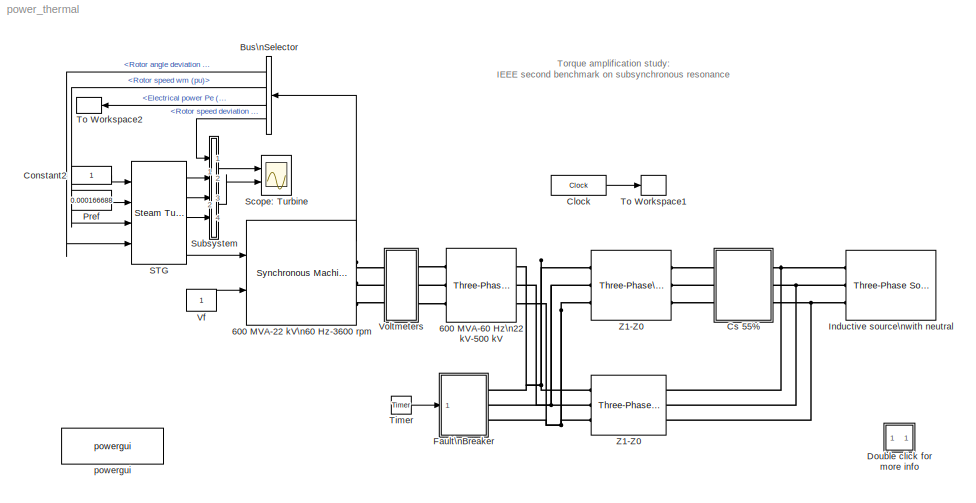
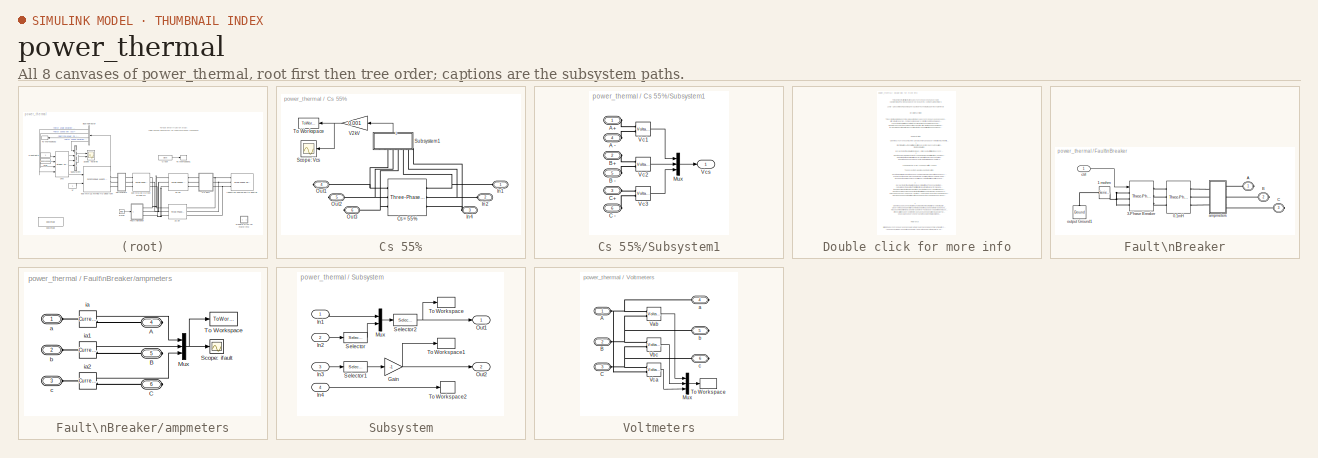
[diagram: thumbnail index - all 8 canvases of the model, root first then tree order]
MODEL power_thermal
KIND model
BLOCK [Reference] 600 MVA-22 kV\n60 Hz-3600 rpm  REF=powerlib/Machines/Synchronous Machine\npu Fundamental
  AttributesFormatString = \\n
  Dampers1 = [ 1.1685E-02  0.18167  1.9718E-02  038371 ]\n
  Dampers2 = [ 0.016  0.132  0.00898  0.411  0.0116  0.0738 ]
  Field = [  0.00096  0.1186 ]
  InitialConditions = [0  0   0 0 0   0 0 0   0]
  LoadFlowParameters = [1 100000 0 0]
  Mechanical = [ 0.87882   0.176*8   1 ]
  NominalParameters = [ 600e6  22e3   60 ]
  Ports = [2, 1, 0, 0, 0, 0, 3]
  PresetModel = No
  RotorType = Round
  Saturation = [0.6404,0.7127,0.8441,0.9214,0.9956,1.082,1.19,1.316,1.457;0.7,0.7698,0.8872,0.9466,0.9969,1.046,1.1,1.151,1.201]
  SetSaturation = off
  ShowDetailedParameters = on
  ShowPortLabels = on
  SourceBlock = powerlib/Machines/Synchronous Machine\npu Fundamental
  SourceType = Synchronous Machine
  Stator = [  0.0045  0.14  1.51  1.45 ]
  Units = 0
BLOCK [Reference] 600 MVA-60 Hz\n22 kV-500 kV  REF=powerlib/Elements/Three-Phase\nTransformer\n(Two Windings)
  AttributesFormatString = \\n
  DataFile = 'hysteresis'
  Hysteresis = off
  InitialFluxes = [ 0.8 , -0.8 , 0.7 ]
  Lm = 500
  Measurements = None
  NominalPower = [ 600e6   60 ]
  Ports = [0, 0, 0, 0, 0, 3, 3]
  Rm = 500
  Saturation = [ 0,0  ;  0.005,1.2  ;  1.0,1.4 ]
  SetInitialFlux = off
  SetSaturation = off
  ShowPortLabels = on
  SourceBlock = powerlib/Elements/Three-Phase\nTransformer\n(Two Windings)
  SourceType = Three-Phase Transformer (Two Windings)
  TransfoNumber = 0
  Winding1 = [ 22e3  1e-6   0  ]
  Winding1Connection = Delta (D1)
  Winding2 = [ 500e3  0.0012   0.12 ]
  Winding2Connection = Yg
BLOCK [BusSelector] Bus\nSelector
  DialogController = Simulink.DDGSource_Bus
  OutputSignals = Mechanical.Rotor angle deviation  d_theta (rad),Mechanical.Rotor speed  wm (pu),Mechanical.Electrical power  Pe (pu),Mechanical.Rotor speed deviation  dw (pu)
  Ports = [1, 4]
BLOCK [Clock] Clock
  Decimation = 100
  DisplayTime = on
BLOCK [Constant] Constant2
BLOCK [SubSystem] Cs 55%
  MaskDisplay = plot(0,0,100,100,[40,10],[50,50],[90,60],[50,50],[40,40],[20,80],[60,60],[20,80])
  MaskIconFrame = on
  MaskIconOpaque = on
  MaskIconRotate = none
  MaskIconUnits = autoscale
  MinAlgLoopOccurrences = off
  Ports = [0, 0, 0, 0, 0, 3, 3]
  RTWSystemCode = Auto
  TreatAsAtomicUnit = off
BLOCK [Reference] Cs 55%/Cs = 55%  REF=powerlib/Elements/Three-Phase\nSeries RLC Branch
  AttributesFormatString = \\n
  Capacitance = 1/(0.55*0.5305*(120*pi)^2)
  Inductance = 0
  LConnTagsString = A|B|C
  LeftPortType = p1
  Measurements = None
  PhysicalDomain = powersysdomain
  Ports = [0, 0, 0, 0, 0, 3, 3]
  RConnTagsString = A|B|C
  Resistance = 0
  RightPortType = p1
  SourceBlock = powerlib/Elements/Three-Phase\nSeries RLC Branch
  SourceType = Three-Phase Series RLC Branch
  SubClassName = unknown
BLOCK [PMIOPort] Cs 55%/In1
  Port = 1
  Side = Left
BLOCK [PMIOPort] Cs 55%/In2
  Port = 2
  Side = Left
BLOCK [PMIOPort] Cs 55%/In4
  Port = 3
  Side = Left
BLOCK [PMIOPort] Cs 55%/Out1
  Port = 4
  Side = Right
BLOCK [PMIOPort] Cs 55%/Out2
  Port = 5
  Side = Right
BLOCK [PMIOPort] Cs 55%/Out3
  Port = 6
  Side = Right
BLOCK [Scope] Cs 55%/Scope: Vcs
  DataFormat = StructureWithTime
  LimitDataPoints = off
  NumInputPorts = 1
  Ports = [1]
  YMax = 500
  YMin = -500
BLOCK [SubSystem] Cs 55%/Subsystem1
  MinAlgLoopOccurrences = off
  Ports = [0, 1, 0, 0, 0, 6]
  RTWSystemCode = Auto
  TreatAsAtomicUnit = off
BLOCK [PMIOPort] Cs 55%/Subsystem1/A -
  Port = 4
  Side = Left
BLOCK [PMIOPort] Cs 55%/Subsystem1/A+
  Port = 1
  Side = Left
BLOCK [PMIOPort] Cs 55%/Subsystem1/B -
  Port = 5
  Side = Left
BLOCK [PMIOPort] Cs 55%/Subsystem1/B+
  Port = 2
  Side = Left
BLOCK [PMIOPort] Cs 55%/Subsystem1/C -
  Port = 6
  Side = Left
BLOCK [PMIOPort] Cs 55%/Subsystem1/C+
  Port = 3
  Side = Left
BLOCK [Mux] Cs 55%/Subsystem1/Mux
  DisplayOption = bar
  Inputs = 3
  Ports = [3, 1]
BLOCK [Reference] Cs 55%/Subsystem1/Vc1  REF=powerlib/Measurements/Voltage Measurement
  AttributesFormatString = \\n
  OutputType = Magnitude
  PSBequivalent = 0
  PhasorSimulation = off
  Ports = [0, 1, 0, 0, 0, 2]
  ShowPortLabels = on
  SourceBlock = powerlib/Measurements/Voltage Measurement
  SourceType = Voltage Measurement
  Tag = PoWeRsYsTeMmEaSuReMeNt
BLOCK [Reference] Cs 55%/Subsystem1/Vc2  REF=powerlib/Measurements/Voltage Measurement
  AttributesFormatString = \\n
  OutputType = Magnitude
  PSBequivalent = 0
  PhasorSimulation = off
  Ports = [0, 1, 0, 0, 0, 2]
  ShowPortLabels = on
  SourceBlock = powerlib/Measurements/Voltage Measurement
  SourceType = Voltage Measurement
  Tag = PoWeRsYsTeMmEaSuReMeNt
BLOCK [Reference] Cs 55%/Subsystem1/Vc3  REF=powerlib/Measurements/Voltage Measurement
  AttributesFormatString = \\n
  OutputType = Magnitude
  PSBequivalent = 0
  PhasorSimulation = off
  Ports = [0, 1, 0, 0, 0, 2]
  ShowPortLabels = on
  SourceBlock = powerlib/Measurements/Voltage Measurement
  SourceType = Voltage Measurement
  Tag = PoWeRsYsTeMmEaSuReMeNt
BLOCK [Outport] Cs 55%/Subsystem1/Vcs
  BusOutputAsStruct = off
  IconDisplay = Port number
BLOCK [ToWorkspace] Cs 55%/To Workspace
  MaxDataPoints = inf
  SaveFormat = Array
  VariableName = vcs
BLOCK [Gain] Cs 55%/V2kV
  Gain = 0.001
BLOCK [SubSystem] Double click for more info
  MaskDisplay = disp('?')
  MaskIconFrame = on
  MaskIconOpaque = on
  MaskIconRotate = none
  MaskIconUnits = autoscale
  MinAlgLoopOccurrences = off
  Ports = []
  RTWSystemCode = Auto
  TreatAsAtomicUnit = off
BLOCK [SubSystem] Fault\nBreaker
  MinAlgLoopOccurrences = off
  Ports = [1, 0, 0, 0, 0, 0, 3]
  RTWSystemCode = Auto
  TreatAsAtomicUnit = off
BLOCK [Reference] Fault\nBreaker/0.1mH  REF=powerlib/Elements/Three-Phase\nSeries RLC Branch
  AttributesFormatString = \\n
  Capacitance = inf
  Inductance = 0.1e-3
  LConnTagsString = A|B|C
  LeftPortType = p1
  Measurements = None
  PhysicalDomain = powersysdomain
  Ports = [0, 0, 0, 0, 0, 3, 3]
  RConnTagsString = A|B|C
  Resistance = 0
  RightPortType = p1
  SourceBlock = powerlib/Elements/Three-Phase\nSeries RLC Branch
  SourceType = Three-Phase Series RLC Branch
  SubClassName = unknown
BLOCK [Reference] Fault\nBreaker/1 mohm  REF=powerlib/Elements/Series RLC Branch
  AttributesFormatString = \\n
  Capacitance = inf
  Inductance = 0
  LConnTagsString = __new0
  LeftPortType = p1
  Measurements = None
  PhysicalDomain = powersysdomain
  Ports = [0, 0, 0, 0, 0, 1, 1]
  RConnTagsString = __new0
  Resistance = 0.001
  RightPortType = p1
  SourceBlock = powerlib/Elements/Series RLC Branch
  SourceType = Series RLC Branch
  SubClassName = unknown
BLOCK [Reference] Fault\nBreaker/3-Phase Breaker  REF=powerlib/Elements/Three-Phase Breaker
  AttributesFormatString = \\n
  BreakerResistance = 0.001
  External = on
  InitialState = open
  Measurements = None
  Ports = [1, 0, 0, 0, 0, 3, 3]
  ShowPortLabels = on
  SnubberCapacitance = inf
  SnubberResistance = 1e6
  SourceBlock = powerlib/Elements/Three-Phase Breaker
  SourceType = Three-Phase Breaker
  SwitchA = on
  SwitchB = on
  SwitchC = on
  SwitchTimes = [4/60  10/60]
BLOCK [PMIOPort] Fault\nBreaker/A
  Port = 1
  Side = Right
BLOCK [PMIOPort] Fault\nBreaker/B
  Port = 2
  Side = Right
BLOCK [PMIOPort] Fault\nBreaker/C
  Port = 3
  Side = Right
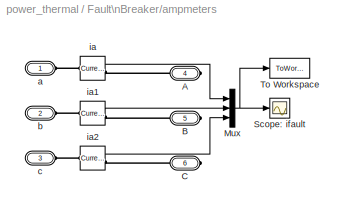
BLOCK [SubSystem] Fault\nBreaker/ampmeters
  MinAlgLoopOccurrences = off
  Ports = [0, 0, 0, 0, 0, 3, 3]
  RTWSystemCode = Auto
  TreatAsAtomicUnit = off
BLOCK [PMIOPort] Fault\nBreaker/ampmeters/A
  Port = 4
  Side = Right
BLOCK [PMIOPort] Fault\nBreaker/ampmeters/B
  Port = 5
  Side = Right
BLOCK [PMIOPort] Fault\nBreaker/ampmeters/C
  Port = 6
  Side = Right
BLOCK [Mux] Fault\nBreaker/ampmeters/Mux
  DisplayOption = bar
  Inputs = 3
  Ports = [3, 1]
BLOCK [Scope] Fault\nBreaker/ampmeters/Scope: ifault
  DataFormat = StructureWithTime
  LimitDataPoints = off
  NumInputPorts = 1
  Ports = [1]
  YMax = 9000
  YMin = -9000
BLOCK [ToWorkspace] Fault\nBreaker/ampmeters/To Workspace
  MaxDataPoints = inf
  SaveFormat = Array
  VariableName = ifault
BLOCK [PMIOPort] Fault\nBreaker/ampmeters/a
  Port = 1
  Side = Left
BLOCK [PMIOPort] Fault\nBreaker/ampmeters/b
  Port = 2
  Side = Left
BLOCK [PMIOPort] Fault\nBreaker/ampmeters/c
  Port = 3
  Side = Left
BLOCK [Reference] Fault\nBreaker/ampmeters/ia  REF=powerlib/Measurements/Current Measurement
  AttributesFormatString = \\n
  OutputType = Magnitude
  PSBequivalent = 0
  PhasorSimulation = off
  Ports = [0, 1, 0, 0, 0, 1, 1]
  ShowPortLabels = on
  SourceBlock = powerlib/Measurements/Current Measurement
  SourceType = Current Measurement
  Tag = PoWeRsYsTeMmEaSuReMeNt
BLOCK [Reference] Fault\nBreaker/ampmeters/ia1  REF=powerlib/Measurements/Current Measurement
  AttributesFormatString = \\n
  OutputType = Magnitude
  PSBequivalent = 0
  PhasorSimulation = off
  Ports = [0, 1, 0, 0, 0, 1, 1]
  ShowPortLabels = on
  SourceBlock = powerlib/Measurements/Current Measurement
  SourceType = Current Measurement
  Tag = PoWeRsYsTeMmEaSuReMeNt
BLOCK [Reference] Fault\nBreaker/ampmeters/ia2  REF=powerlib/Measurements/Current Measurement
  AttributesFormatString = \\n
  OutputType = Magnitude
  PSBequivalent = 0
  PhasorSimulation = off
  Ports = [0, 1, 0, 0, 0, 1, 1]
  ShowPortLabels = on
  SourceBlock = powerlib/Measurements/Current Measurement
  SourceType = Current Measurement
  Tag = PoWeRsYsTeMmEaSuReMeNt
BLOCK [Inport] Fault\nBreaker/ctrl
  IconDisplay = Port number
  LatchInput = off
  Port = 1
BLOCK [Reference] Fault\nBreaker/output Ground1  REF=powerlib/Elements/Ground
  AttributesFormatString = \\n
  LConnTagsString = a
  LeftPortType = p1
  PhysicalDomain = powersysdomain
  Ports = [0, 0, 0, 0, 0, 1]
  RightPortType = p1
  SourceBlock = powerlib/Elements/Ground
  SourceType = Ground
  SubClassName = unknown
BLOCK [Reference] Inductive source\nwith neutral  REF=powerlib/Electrical\nSources/Three-Phase Source
  BaseVoltage = 0
  Frequency = 60
  Inductance = 0.1989
  InternalConnection = Yg
  PhaseAngle = 0
  Ports = [0, 0, 0, 0, 0, 0, 3]
  Resistance = 3.5
  ShortCircuitLevel = 0
  ShowPortLabels = on
  SourceBlock = powerlib/Electrical\nSources/Three-Phase Source
  SourceType = Three-Phase Source
  SpecifyImpedance = off
  Voltage = 500e3
  XRratio = 0
BLOCK [Constant] Pref
  Value = 0.000166688
BLOCK [Reference] STG  REF=powerlib/Machines/Steam Turbine\nand Governor
  DA = [  0.3104  0.05  0  0 ]*8
  HA = [  1.5498   0.24894  0  0 ]
  KA = [  83.47  42.702  0  0 ]
  Ports = [4, 4]
  ShowPortLabels = on
  SourceBlock = powerlib/Machines/Steam Turbine\nand Governor
  SourceType = Steam Turbine and Governor
  gentype = Tandem-compound (multi-mass)
  ini1 = 250.35/555
  ini2 = [0.000166688,-120.04]
  reg1 = [ 1  0.05    0 ]
  reg2 = [ 0.001  0.15 ]
  reg3 = [ -0.1  0.1  0.00016668  0.00016668*1.01 ]
  turb1 = [ 0  10   3.3   0.5   ]
  turb2 = [ 0.5   0.5   0  0 ]
BLOCK [Scope] Scope: Turbine
  DataFormat = StructureWithTime
  LimitDataPoints = off
  NumInputPorts = 2
  Ports = [2]
  TimeRange = 0.5
  YMax = 0.6~130
  YMin = -0.9~-70
  ZoomMode = xonly
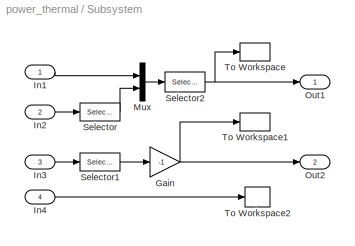
BLOCK [SubSystem] Subsystem
  MinAlgLoopOccurrences = off
  Ports = [4, 2]
  RTWSystemCode = Auto
  TreatAsAtomicUnit = off
BLOCK [Gain] Subsystem/Gain
  Gain = -1
BLOCK [Inport] Subsystem/In1
  IconDisplay = Port number
  LatchInput = off
  Port = 1
BLOCK [Inport] Subsystem/In2
  IconDisplay = Port number
  LatchInput = off
  Port = 2
BLOCK [Inport] Subsystem/In3
  IconDisplay = Port number
  LatchInput = off
  Port = 3
BLOCK [Inport] Subsystem/In4
  IconDisplay = Port number
  LatchInput = off
  Port = 4
BLOCK [Mux] Subsystem/Mux
  DisplayOption = bar
  Inputs = 2
  Ports = [2, 1]
BLOCK [Outport] Subsystem/Out1
  BusOutputAsStruct = off
  IconDisplay = Port number
BLOCK [Outport] Subsystem/Out2
  BusOutputAsStruct = off
  IconDisplay = Port number
  Port = 2
BLOCK [Selector] Subsystem/Selector
  Elements = [3 4]
  InputPortWidth = 4
  Ports = [1, 1]
BLOCK [Selector] Subsystem/Selector1
  Elements = [3 4]
  InputPortWidth = 4
  Ports = [1, 1]
BLOCK [Selector] Subsystem/Selector2
  Elements = [2 3 1]
  InputPortWidth = 3
  Ports = [1, 1]
BLOCK [ToWorkspace] Subsystem/To Workspace
  MaxDataPoints = inf
  SaveFormat = Array
  VariableName = dw
BLOCK [ToWorkspace] Subsystem/To Workspace1
  MaxDataPoints = inf
  SaveFormat = Array
  VariableName = T
BLOCK [ToWorkspace] Subsystem/To Workspace2
  MaxDataPoints = inf
  SaveFormat = Array
  VariableName = g
BLOCK [Reference] Timer  REF=powerlib_extras/Control \nBlocks/Timer
  Ports = [0, 1]
  ShowPortLabels = on
  SourceBlock = powerlib_extras/Control \nBlocks/Timer
  SourceType = Timer
  e = [ 1 0 ]
  t = [ 0.022289  0.022289+0.017 ]
BLOCK [ToWorkspace] To Workspace1
  MaxDataPoints = inf
  SaveFormat = Array
  VariableName = t
BLOCK [ToWorkspace] To Workspace2
  MaxDataPoints = inf
  SaveFormat = Array
  VariableName = Pe
BLOCK [Constant] Vf
BLOCK [SubSystem] Voltmeters
  MinAlgLoopOccurrences = off
  Ports = [0, 0, 0, 0, 0, 3, 3]
  RTWSystemCode = Auto
  TreatAsAtomicUnit = off
BLOCK [PMIOPort] Voltmeters/A
  Port = 1
  Side = Left
BLOCK [PMIOPort] Voltmeters/B
  Port = 2
  Side = Left
BLOCK [PMIOPort] Voltmeters/C
  Port = 3
  Side = Left
BLOCK [Mux] Voltmeters/Mux
  DisplayOption = bar
  Inputs = 3
  Ports = [3, 1]
BLOCK [ToWorkspace] Voltmeters/To Workspace
  MaxDataPoints = inf
  SaveFormat = Array
  VariableName = vt
BLOCK [Reference] Voltmeters/Vab  REF=powerlib/Measurements/Voltage Measurement
  AttributesFormatString = \\n
  OutputType = Magnitude
  PSBequivalent = 0
  PhasorSimulation = off
  Ports = [0, 1, 0, 0, 0, 2]
  ShowPortLabels = on
  SourceBlock = powerlib/Measurements/Voltage Measurement
  SourceType = Voltage Measurement
  Tag = PoWeRsYsTeMmEaSuReMeNt
BLOCK [Reference] Voltmeters/Vbc  REF=powerlib/Measurements/Voltage Measurement
  AttributesFormatString = \\n
  OutputType = Magnitude
  PSBequivalent = 0
  PhasorSimulation = off
  Ports = [0, 1, 0, 0, 0, 2]
  ShowPortLabels = on
  SourceBlock = powerlib/Measurements/Voltage Measurement
  SourceType = Voltage Measurement
  Tag = PoWeRsYsTeMmEaSuReMeNt
BLOCK [Reference] Voltmeters/Vca  REF=powerlib/Measurements/Voltage Measurement
  AttributesFormatString = \\n
  OutputType = Magnitude
  PSBequivalent = 0
  PhasorSimulation = off
  Ports = [0, 1, 0, 0, 0, 2]
  ShowPortLabels = on
  SourceBlock = powerlib/Measurements/Voltage Measurement
  SourceType = Voltage Measurement
  Tag = PoWeRsYsTeMmEaSuReMeNt
BLOCK [PMIOPort] Voltmeters/a
  Port = 4
  Side = Right
BLOCK [PMIOPort] Voltmeters/b
  Port = 5
  Side = Right
BLOCK [PMIOPort] Voltmeters/c
  Port = 6
  Side = Right
BLOCK [Reference] Z1-Z0  REF=powerlib/Elements/Three-Phase\nMutual Inductance\nZ1-Z0
  AttributesFormatString = \\n
  LConnTagsString = a|b|c
  LeftPortType = p1
  PhysicalDomain = powersysdomain
  Ports = [0, 0, 0, 0, 0, 3, 3]
  PositiveSequence = [ 18.5  0.5305 ]
  RConnTagsString = A|B|C
  RightPortType = p1
  SourceBlock = powerlib/Elements/Three-Phase\nMutual Inductance\nZ1-Z0
  SourceType = Three-Phase Mutual Inductance Z1-Z0
  SubClassName = unknown
  ZeroSequence = [ 55.0  1.5915 ]
BLOCK [Reference] Z1-Z0   REF=powerlib/Elements/Three-Phase\nMutual Inductance\nZ1-Z0
  AttributesFormatString = \\n
  LConnTagsString = a|b|c
  LeftPortType = p1
  PhysicalDomain = powersysdomain
  Ports = [0, 0, 0, 0, 0, 3, 3]
  PositiveSequence = [ 16.75  0.4901 ]
  RConnTagsString = A|B|C
  RightPortType = p1
  SourceBlock = powerlib/Elements/Three-Phase\nMutual Inductance\nZ1-Z0
  SourceType = Three-Phase Mutual Inductance Z1-Z0
  SubClassName = unknown
  ZeroSequence = [ 46.5  1.3926 ]
BLOCK [Reference] powergui  REF=powerlib/powergui
  DisplayStyle = off
  Frange = logspace(0,3,50)
  FreqAxis = off
  MaxFrequency = 1000
  Ports = []
  Priority = 2
  RmsSteady = 1
  ShowPortLabels = on
  SourceBlock = powerlib/powergui
  SourceType = PSB option menu block
  StartTime = 0.0
  Ts = 0
  Xlog = off
  Ylog = off
  ZoomFFT = on
  cycles = 2
  display = off
  echomessages = off
  frequency = 60
  frequencyindice = 1
  frequencyindicesteady = 1
  fundamental = 60
  methode = off
  save = off
  variable = ZData
ANNOTATION (root): Torque amplification study:\nIEEE second benchmark on subsynchronous resonance
ANNOTATION Double click for more info: 1
ANNOTATION Double click for more info: 2
ANNOTATION Double click for more info: 3
ANNOTATION Double click for more info: 4
ANNOTATION Double click for more info: Circuit Description
ANNOTATION Double click for more info: Demonstration
ANNOTATION Double click for more info: In order to start the simulation in steady state with the STG connected, this Simulink block must also be initialized according to the values \ncalculated by the load flow. This initialization is automatically performed when you execute the Load Flow, as long as you connect at\nthe Pm and Vf inputs of the machine either Constant blocks or regulation blocks from the machine library (HTG, STG, or Ex...<+457ch>
ANNOTATION Double click for more info: In order to start the simulation in steady-state you must initialize the synchronous machine for the desired load flow.\nOpen the POWERGUI and select \"Load Flow & Machine initialization\" . The machine \"Bus type\" should be already initialized as \"PV generator\",\nindicating that the load flow will be performed with the machine controlling its active power and terminal voltage.\nSpecify the des...<+49ch>
ANNOTATION Double click for more info: Load Flow: U AB (Vrms) = 22000 , P (wattts) =100e3
ANNOTATION Double click for more info: Louis-A. Dessaint and R. Champagne (Ecole de Technologie Superieure, Montreal)
ANNOTATION Double click for more info: Open the Scope connected to the STG model. Run the simulation by selecting Start from the Simulation menu. \nObserve the speed deviations on the top axis of the Scope and the torques transmitted between the shaft's \nmasses on the bottom axis. A peak torque of over 4 pu is observed between masses 1 and 2. The frequency \nof the oscillations oberved in the torques and speed deviations is about 27 H...<+95ch>
ANNOTATION Double click for more info: Open the synchronous machine (SM) block menu and observe that the machine intial conditions (last line) are set to zero.\nStart Simulation. As the SM initial conditions are not properly set you will observe that simulation does not start in steady state.\nStop the simulation.
ANNOTATION Double click for more info: Reference
ANNOTATION Double click for more info: Then press the \"Update Load Flow\" button.\n\nOnce the load flow is solved the phasors of AB and BC machine voltages and currents flowing in phases A and B are updated.\nThe SM reactive power, mechanical power and field voltage are displayed : Q = 1.30 Mvar, Pmec = 100 kW (0.0001667 pu), field voltage Ef = 1.0036 pu;\nIf you open the SM block menu you will observe that the initial conditions have...<+14ch>
ANNOTATION Double click for more info: This demonstration illustrates subsynchronous resonance (SSR)\nusing the Steam Turbine and Governor on a series-compensated network
ANNOTATION Double click for more info: This system is an IEEE benchmark [1] used to study subsynchronous resonance and particularly torque amplification\nafter a fault on a series-compensated power system. It consists in a single generator (600 MVA/22kV/60 Hz/3600 rpm)\nconnected to an infinite bus via two transmission lines, one of which is series-compensated. The subsynchronous \nmode introduced by the compensation capacitor after a ...<+157ch>
ANNOTATION Double click for more info: [1] IEEE Subsynchronous resonance working group, \"Second benchmark model for computer simulation of subsynchronous\n resonance,\" IEEE Transactions on Power Apparatus and Systems, vol. PAS-104, no. 5, 1985, pp. 1057-1066.
LINE 600 MVA-22 kV\n60 Hz-3600 rpm:1 -> Bus\nSelector:1
LINE Bus\nSelector:1 -> STG:4
LINE Bus\nSelector:2 -> STG:3
LINE Bus\nSelector:3 -> To Workspace2:1
LINE Bus\nSelector:4 -> Subsystem:1
LINE Clock:1 -> To Workspace1:1
LINE Constant2:1 -> STG:1
LINE Cs 55%/Subsystem1/Mux:1 -> Cs 55%/Subsystem1/Vcs:1
LINE Cs 55%/Subsystem1/Vc1:1 -> Cs 55%/Subsystem1/Mux:1
LINE Cs 55%/Subsystem1/Vc2:1 -> Cs 55%/Subsystem1/Mux:2
LINE Cs 55%/Subsystem1/Vc3:1 -> Cs 55%/Subsystem1/Mux:3
LINE Cs 55%/Subsystem1:1 -> Cs 55%/V2kV:1
NET Cs 55%/V2kV:1 -> Cs 55%/Scope: Vcs:1, Cs 55%/To Workspace:1
NET Fault\nBreaker/ampmeters/Mux:1 -> Fault\nBreaker/ampmeters/Scope: ifault:1, Fault\nBreaker/ampmeters/To Workspace:1
LINE Fault\nBreaker/ampmeters/ia1:1 -> Fault\nBreaker/ampmeters/Mux:2
LINE Fault\nBreaker/ampmeters/ia2:1 -> Fault\nBreaker/ampmeters/Mux:3
LINE Fault\nBreaker/ampmeters/ia:1 -> Fault\nBreaker/ampmeters/Mux:1
LINE Fault\nBreaker/ctrl:1 -> Fault\nBreaker/3-Phase Breaker:1
LINE Pref:1 -> STG:2
LINE STG:1 -> Subsystem:2
LINE STG:2 -> Subsystem:3
LINE STG:3 -> Subsystem:4
LINE STG:4 -> 600 MVA-22 kV\n60 Hz-3600 rpm:1
NET Subsystem/Gain:1 -> Subsystem/Out2:1, Subsystem/To Workspace1:1
LINE Subsystem/In1:1 -> Subsystem/Mux:1
LINE Subsystem/In2:1 -> Subsystem/Selector:1
LINE Subsystem/In3:1 -> Subsystem/Selector1:1
LINE Subsystem/In4:1 -> Subsystem/To Workspace2:1
LINE Subsystem/Mux:1 -> Subsystem/Selector2:1
LINE Subsystem/Selector1:1 -> Subsystem/Gain:1
NET Subsystem/Selector2:1 -> Subsystem/Out1:1, Subsystem/To Workspace:1
LINE Subsystem/Selector:1 -> Subsystem/Mux:2
LINE Subsystem:1 -> Scope: Turbine:1
LINE Subsystem:2 -> Scope: Turbine:2
LINE Timer:1 -> Fault\nBreaker:1
LINE Vf:1 -> 600 MVA-22 kV\n60 Hz-3600 rpm:2
LINE Voltmeters/Mux:1 -> Voltmeters/To Workspace:1
LINE Voltmeters/Vab:1 -> Voltmeters/Mux:1
LINE Voltmeters/Vbc:1 -> Voltmeters/Mux:2
LINE Voltmeters/Vca:1 -> Voltmeters/Mux:3
PLINE 600 MVA-22 kV\n60 Hz-3600 rpm:RConn1 -- Voltmeters:LConn1
PLINE 600 MVA-22 kV\n60 Hz-3600 rpm:RConn2 -- Voltmeters:LConn2
PLINE 600 MVA-22 kV\n60 Hz-3600 rpm:RConn3 -- Voltmeters:LConn3
PLINE 600 MVA-60 Hz\n22 kV-500 kV:LConn1 -- Voltmeters:RConn1
PLINE 600 MVA-60 Hz\n22 kV-500 kV:LConn2 -- Voltmeters:RConn2
PLINE 600 MVA-60 Hz\n22 kV-500 kV:LConn3 -- Voltmeters:RConn3
PNET net1: 600 MVA-60 Hz\n22 kV-500 kV:RConn1 -- Fault\nBreaker:RConn1 -- Z1-Z0 :LConn1 -- Z1-Z0:LConn1
PNET net2: 600 MVA-60 Hz\n22 kV-500 kV:RConn2 -- Fault\nBreaker:RConn2 -- Z1-Z0 :LConn2 -- Z1-Z0:LConn2
PNET net3: 600 MVA-60 Hz\n22 kV-500 kV:RConn3 -- Fault\nBreaker:RConn3 -- Z1-Z0 :LConn3 -- Z1-Z0:LConn3
PNET net4: Cs 55%/Cs = 55%:LConn1 -- Cs 55%/In1:RConn1 -- Cs 55%/Subsystem1:LConn4
PNET net5: Cs 55%/Cs = 55%:LConn2 -- Cs 55%/In2:RConn1 -- Cs 55%/Subsystem1:LConn5
PNET net6: Cs 55%/Cs = 55%:LConn3 -- Cs 55%/In4:RConn1 -- Cs 55%/Subsystem1:LConn6
PNET net7: Cs 55%/Cs = 55%:RConn1 -- Cs 55%/Out1:RConn1 -- Cs 55%/Subsystem1:LConn1
PNET net8: Cs 55%/Cs = 55%:RConn2 -- Cs 55%/Out2:RConn1 -- Cs 55%/Subsystem1:LConn2
PNET net9: Cs 55%/Cs = 55%:RConn3 -- Cs 55%/Out3:RConn1 -- Cs 55%/Subsystem1:LConn3
PLINE Cs 55%/Subsystem1/A -:RConn1 -- Cs 55%/Subsystem1/Vc1:LConn2
PLINE Cs 55%/Subsystem1/A+:RConn1 -- Cs 55%/Subsystem1/Vc1:LConn1
PLINE Cs 55%/Subsystem1/B -:RConn1 -- Cs 55%/Subsystem1/Vc2:LConn2
PLINE Cs 55%/Subsystem1/B+:RConn1 -- Cs 55%/Subsystem1/Vc2:LConn1
PLINE Cs 55%/Subsystem1/C -:RConn1 -- Cs 55%/Subsystem1/Vc3:LConn2
PLINE Cs 55%/Subsystem1/C+:RConn1 -- Cs 55%/Subsystem1/Vc3:LConn1
PNET net10: Cs 55%:LConn1 -- Inductive source\nwith neutral:RConn1 -- Z1-Z0 :RConn1
PNET net11: Cs 55%:LConn2 -- Inductive source\nwith neutral:RConn2 -- Z1-Z0 :RConn2
PNET net12: Cs 55%:LConn3 -- Inductive source\nwith neutral:RConn3 -- Z1-Z0 :RConn3
PLINE Cs 55%:RConn1 -- Z1-Z0:RConn1
PLINE Cs 55%:RConn2 -- Z1-Z0:RConn2
PLINE Cs 55%:RConn3 -- Z1-Z0:RConn3
PLINE Fault\nBreaker/0.1mH:LConn1 -- Fault\nBreaker/3-Phase Breaker:RConn1
PLINE Fault\nBreaker/0.1mH:LConn2 -- Fault\nBreaker/3-Phase Breaker:RConn2
PLINE Fault\nBreaker/0.1mH:LConn3 -- Fault\nBreaker/3-Phase Breaker:RConn3
PLINE Fault\nBreaker/0.1mH:RConn1 -- Fault\nBreaker/ampmeters:LConn1
PLINE Fault\nBreaker/0.1mH:RConn2 -- Fault\nBreaker/ampmeters:LConn2
PLINE Fault\nBreaker/0.1mH:RConn3 -- Fault\nBreaker/ampmeters:LConn3
PLINE Fault\nBreaker/1 mohm:LConn1 -- Fault\nBreaker/output Ground1:LConn1
PNET net13: Fault\nBreaker/1 mohm:RConn1 -- Fault\nBreaker/3-Phase Breaker:LConn1 -- Fault\nBreaker/3-Phase Breaker:LConn2 -- Fault\nBreaker/3-Phase Breaker:LConn3
PLINE Fault\nBreaker/A:RConn1 -- Fault\nBreaker/ampmeters:RConn1
PLINE Fault\nBreaker/B:RConn1 -- Fault\nBreaker/ampmeters:RConn2
PLINE Fault\nBreaker/C:RConn1 -- Fault\nBreaker/ampmeters:RConn3
PLINE Fault\nBreaker/ampmeters/A:RConn1 -- Fault\nBreaker/ampmeters/ia:RConn1
PLINE Fault\nBreaker/ampmeters/B:RConn1 -- Fault\nBreaker/ampmeters/ia1:RConn1
PLINE Fault\nBreaker/ampmeters/C:RConn1 -- Fault\nBreaker/ampmeters/ia2:RConn1
PLINE Fault\nBreaker/ampmeters/a:RConn1 -- Fault\nBreaker/ampmeters/ia:LConn1
PLINE Fault\nBreaker/ampmeters/b:RConn1 -- Fault\nBreaker/ampmeters/ia1:LConn1
PLINE Fault\nBreaker/ampmeters/c:RConn1 -- Fault\nBreaker/ampmeters/ia2:LConn1
PNET net14: Voltmeters/A:RConn1 -- Voltmeters/Vab:LConn1 -- Voltmeters/Vca:LConn2 -- Voltmeters/a:RConn1
PNET net15: Voltmeters/B:RConn1 -- Voltmeters/Vab:LConn2 -- Voltmeters/Vbc:LConn1 -- Voltmeters/b:RConn1
PNET net16: Voltmeters/C:RConn1 -- Voltmeters/Vbc:LConn2 -- Voltmeters/Vca:LConn1 -- Voltmeters/c:RConn1
note: NET lines group one-source signal fan-out (src -> all destinations, sorted); 1:1 wires keep LINE; PNET lines group multi-terminal physical nets as a canonical sorted terminal list (undirected conserving connections); 2-terminal nets keep the pairwise PLINE form
